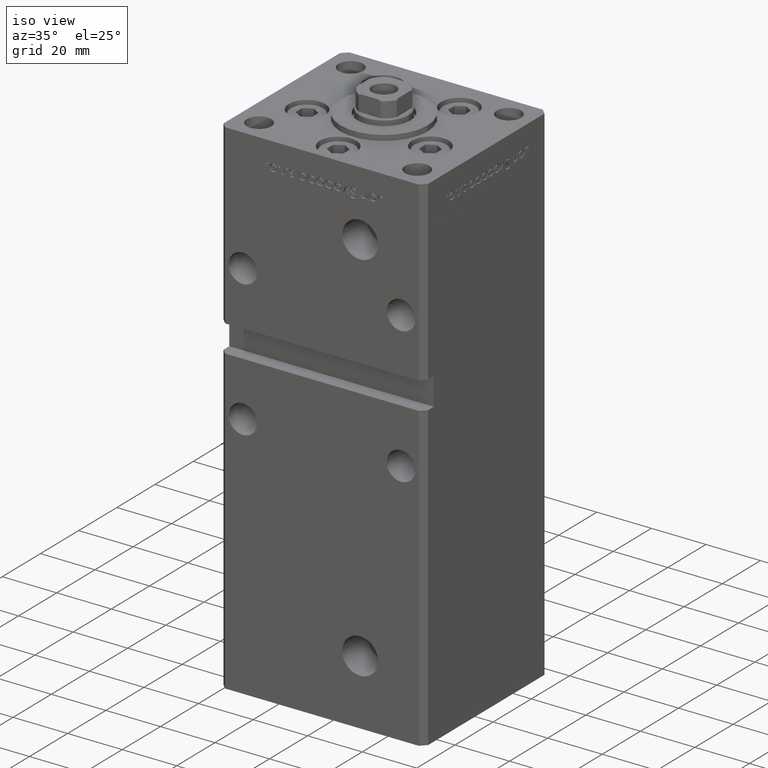
[diagram: clean part render]
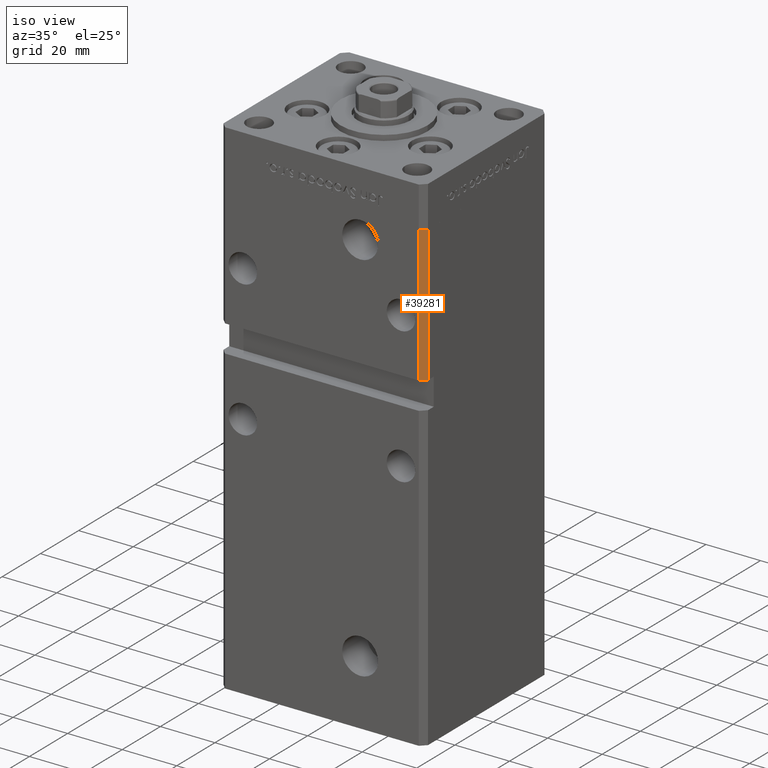
[diagram: same view with one face highlighted and labeled with its STEP entity id]
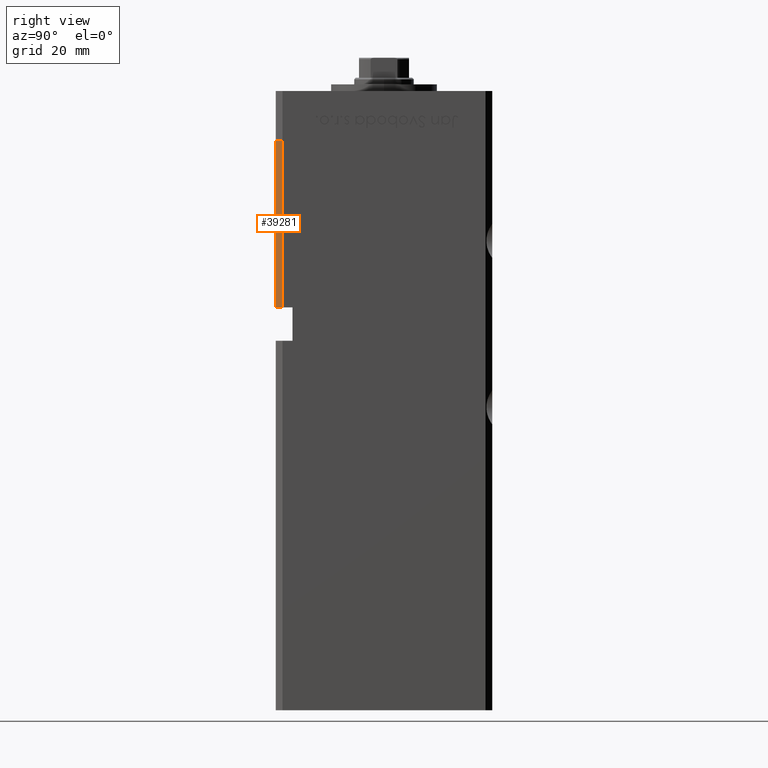
[diagram: same view with one face highlighted and labeled with its STEP entity id]
A machine part, iso view. The second image highlights one B-rep face of the part: STEP entity #39281.
A second angle (right view) of the same face is appended — the face is thin or edge-on in the first view.
In plain terms, the highlighted planar face has unit normal (0.7071, -0.7071, 0).
Its self-contained STEP definition (entity closure, byte-faithful):
#575 = CARTESIAN_POINT ( 'NONE',  ( 35.49999999999999289, -32.50000000000000000, 106.0000000000000000 ) ) ;
#3629 = EDGE_LOOP ( 'NONE', ( #28210, #18889, #25499, #51124 ) ) ;
#4839 = VECTOR ( 'NONE', #43528, 1000.000000000000114 ) ;
#6440 = LINE ( 'NONE', #31449, #29094 ) ;
#7523 = PLANE ( 'NONE',  #47684 ) ;
#7725 = EDGE_CURVE ( 'NONE', #27018, #44179, #28639, .T. ) ;
#7865 = DIRECTION ( 'NONE',  ( -0.000000000000000000, -0.000000000000000000, -1.000000000000000000 ) ) ;
#8475 = DIRECTION ( 'NONE',  ( -0.000000000000000000, -0.000000000000000000, -1.000000000000000000 ) ) ;
#11527 = VECTOR ( 'NONE', #8475, 1000.000000000000000 ) ;
#16110 = DIRECTION ( 'NONE',  ( 0.7071067811865475727, -0.7071067811865475727, 0.000000000000000000 ) ) ;
#18176 = EDGE_CURVE ( 'NONE', #27018, #44452, #35199, .T. ) ;
#18889 = ORIENTED_EDGE ( 'NONE', *, *, #7725, .F. ) ;
#21269 = CARTESIAN_POINT ( 'NONE',  ( 35.49999999999999289, -32.50000000000000000, 156.0000000000000000 ) ) ;
#23925 = DIRECTION ( 'NONE',  ( 0.7071067811865474617, 0.7071067811865474617, 0.000000000000000000 ) ) ;
#25499 = ORIENTED_EDGE ( 'NONE', *, *, #18176, .T. ) ;
#27018 = VERTEX_POINT ( 'NONE', #27395 ) ;
#27395 = CARTESIAN_POINT ( 'NONE',  ( 37.49999999999999289, -30.50000000000000000, 156.0000000000000000 ) ) ;
#27409 = CARTESIAN_POINT ( 'NONE',  ( 37.49999999999999289, -30.50000000000000000, 156.0000000000000000 ) ) ;
#27414 = DIRECTION ( 'NONE',  ( -0.7071067811865474617, -0.7071067811865474617, 0.000000000000000000 ) ) ;
#28036 = LINE ( 'NONE', #28571, #48607 ) ;
#28210 = ORIENTED_EDGE ( 'NONE', *, *, #52162, .F. ) ;
#28571 = CARTESIAN_POINT ( 'NONE',  ( 35.49999999999999289, -32.50000000000000000, 156.0000000000000000 ) ) ;
#28639 = LINE ( 'NONE', #38002, #11527 ) ;
#29094 = VECTOR ( 'NONE', #27414, 1000.000000000000114 ) ;
#31449 = CARTESIAN_POINT ( 'NONE',  ( 37.49999999999999289, -30.50000000000000000, 106.0000000000000000 ) ) ;
#35199 = LINE ( 'NONE', #27409, #4839 ) ;
#37458 = CARTESIAN_POINT ( 'NONE',  ( 37.49999999999999289, -30.50000000000000355, 106.0000000000000000 ) ) ;
#38002 = CARTESIAN_POINT ( 'NONE',  ( 37.49999999999999289, -30.50000000000000000, 156.0000000000000000 ) ) ;
#39281 = ADVANCED_FACE ( 'NONE', ( #52948 ), #7523, .T. ) ;
#43528 = DIRECTION ( 'NONE',  ( -0.7071067811865474617, -0.7071067811865474617, 0.000000000000000000 ) ) ;
#44064 = CARTESIAN_POINT ( 'NONE',  ( 37.49999999999999289, -30.50000000000000000, 156.0000000000000000 ) ) ;
#44179 = VERTEX_POINT ( 'NONE', #37458 ) ;
#44452 = VERTEX_POINT ( 'NONE', #21269 ) ;
#46215 = EDGE_CURVE ( 'NONE', #44452, #52900, #28036, .T. ) ;
#47684 = AXIS2_PLACEMENT_3D ( 'NONE', #44064, #16110, #23925 ) ;
#48607 = VECTOR ( 'NONE', #7865, 1000.000000000000000 ) ;
#51124 = ORIENTED_EDGE ( 'NONE', *, *, #46215, .T. ) ;
#52162 = EDGE_CURVE ( 'NONE', #44179, #52900, #6440, .T. ) ;
#52900 = VERTEX_POINT ( 'NONE', #575 ) ;
#52948 = FACE_OUTER_BOUND ( 'NONE', #3629, .T. ) ;